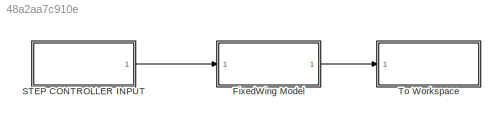
MODEL slx_48a2aa7c910e
KIND model
CONFIG AbsTol = auto
CONFIG EnableMultiTasking = off
CONFIG FixedStep = auto
CONFIG MaxStep = auto
CONFIG MinStep = auto
CONFIG RelTol = 1e-3
CONFIG SampleTimeConstraint = Unconstrained
CONFIG Solver = VariableStepAuto
CONFIG SolverName = VariableStepAuto
CONFIG StartTime = 0.0
CONFIG StopTime = 10.0
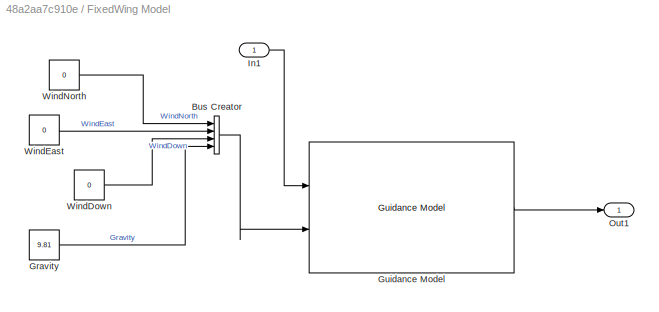
BLOCK [SubSystem] FixedWing Model
  Ports = [1, 1]
BLOCK [BusCreator] FixedWing Model/Bus Creator
  DisplayOption = bar
  InheritFromInputs = on
  Inputs = WindNorth,WindEast,WindDown,Gravity
  NonVirtualBus = on
  OutDataTypeStr = Bus: FixedWingGuidanceEnvironmentBus
  Ports = [4, 1]
BLOCK [Constant] FixedWing Model/Gravity
  Value = 9.81
BLOCK [Reference] FixedWing Model/Guidance Model  REF=uavalgslib/Guidance Model
  Ports = [2, 1]
  SourceBlock = uavalgslib/Guidance Model
  SourceType = Guidance Model
BLOCK [Inport] FixedWing Model/In1
BLOCK [Outport] FixedWing Model/Out1
BLOCK [Constant] FixedWing Model/WindDown
  Value = 0
BLOCK [Constant] FixedWing Model/WindEast
  Value = 0
BLOCK [Constant] FixedWing Model/WindNorth
  Value = 0
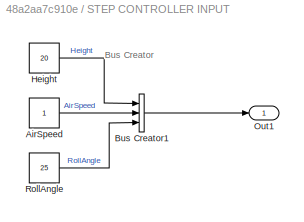
BLOCK [SubSystem] STEP CONTROLLER INPUT
  Ports = [0, 1]
BLOCK [Constant] STEP CONTROLLER INPUT/AirSpeed
BLOCK [BusCreator] STEP CONTROLLER INPUT/Bus Creator1
  DisplayOption = bar
  InheritFromInputs = on
  Inputs = Height,AirSpeed,RollAngle
  NonVirtualBus = on
  OutDataTypeStr = Bus: FixedWingGuidanceControlBus
  Ports = [3, 1]
BLOCK [Constant] STEP CONTROLLER INPUT/Height
  Value = 20
BLOCK [Outport] STEP CONTROLLER INPUT/Out1
BLOCK [Constant] STEP CONTROLLER INPUT/RollAngle
  Value = 25
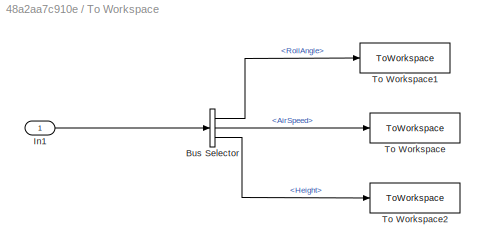
BLOCK [SubSystem] To Workspace
  Ports = [1]
BLOCK [BusSelector] To Workspace/Bus Selector
  OutputSignals = RollAngle,AirSpeed,Height
  Ports = [1, 3]
BLOCK [Inport] To Workspace/In1
BLOCK [ToWorkspace] To Workspace/To Workspace
  FixptAsFi = on
  MaxDataPoints = inf
  Ports = [1]
  SampleTime = -1
  SaveFormat = Timeseries
  VariableName = simout
BLOCK [ToWorkspace] To Workspace/To Workspace1
  FixptAsFi = on
  MaxDataPoints = inf
  Ports = [1]
  SampleTime = -1
  SaveFormat = Timeseries
  VariableName = simout1
BLOCK [ToWorkspace] To Workspace/To Workspace2
  FixptAsFi = on
  MaxDataPoints = inf
  Ports = [1]
  SampleTime = -1
  SaveFormat = Timeseries
  VariableName = simout2
ANNOTATION STEP CONTROLLER INPUT: Bus Creator
LINE FixedWing Model/Bus Creator:1 -> FixedWing Model/Guidance Model:2
LINE FixedWing Model/Gravity:1 -> FixedWing Model/Bus Creator:4
LINE FixedWing Model/Guidance Model:1 -> FixedWing Model/Out1:1
LINE FixedWing Model/In1:1 -> FixedWing Model/Guidance Model:1
LINE FixedWing Model/WindDown:1 -> FixedWing Model/Bus Creator:3
LINE FixedWing Model/WindEast:1 -> FixedWing Model/Bus Creator:2
LINE FixedWing Model/WindNorth:1 -> FixedWing Model/Bus Creator:1
LINE FixedWing Model:1 -> To Workspace:1
LINE STEP CONTROLLER INPUT/AirSpeed:1 -> STEP CONTROLLER INPUT/Bus Creator1:2
LINE STEP CONTROLLER INPUT/Bus Creator1:1 -> STEP CONTROLLER INPUT/Out1:1
LINE STEP CONTROLLER INPUT/Height:1 -> STEP CONTROLLER INPUT/Bus Creator1:1
LINE STEP CONTROLLER INPUT/RollAngle:1 -> STEP CONTROLLER INPUT/Bus Creator1:3
LINE STEP CONTROLLER INPUT:1 -> FixedWing Model:1
LINE To Workspace/Bus Selector:1 -> To Workspace/To Workspace1:1
LINE To Workspace/Bus Selector:2 -> To Workspace/To Workspace:1
LINE To Workspace/Bus Selector:3 -> To Workspace/To Workspace2:1
LINE To Workspace/In1:1 -> To Workspace/Bus Selector:1
